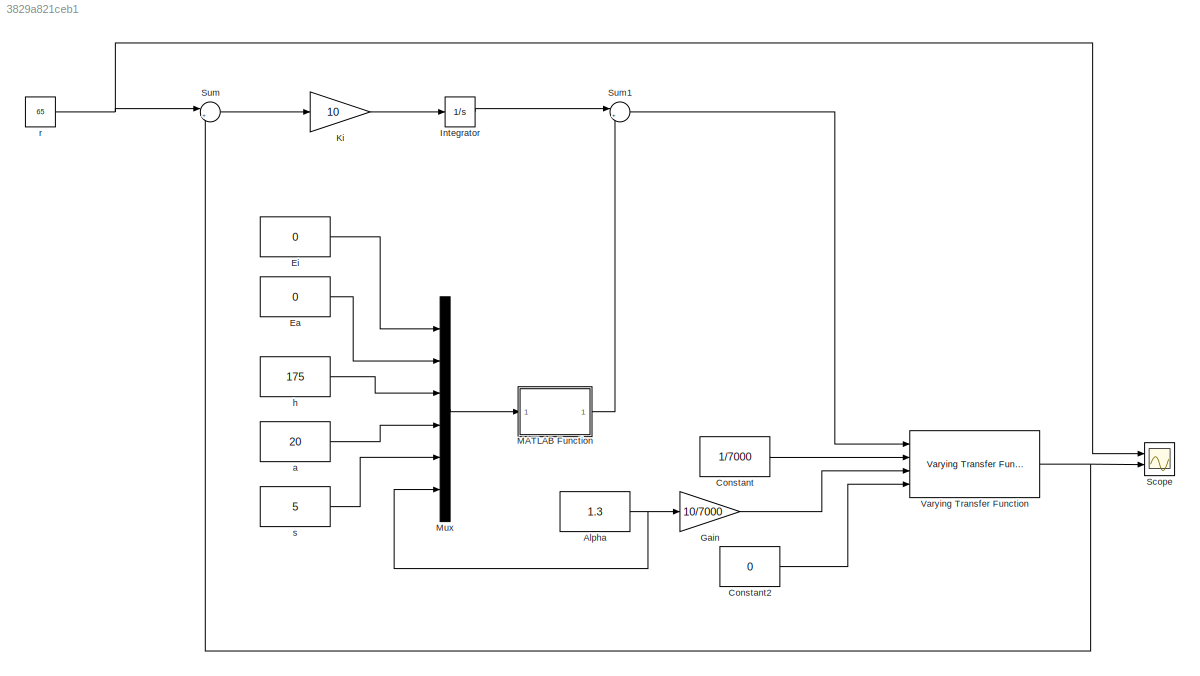
MODEL slx_3829a821ceb1
KIND model
CONFIG AbsTol = auto
CONFIG EnableMultiTasking = off
CONFIG FixedStep = auto
CONFIG MaxStep = auto
CONFIG MinStep = auto
CONFIG RelTol = 1e-3
CONFIG SampleTimeConstraint = Unconstrained
CONFIG SolverName = VariableStepAuto
CONFIG StartTime = 0.0
CONFIG StopTime = 5000
BLOCK [Constant] Alpha
  Value = 1.3
BLOCK [Constant] Constant
  Value = 1/7000
BLOCK [Constant] Constant2
  Value = 0
BLOCK [Constant] Ea
  Value = 0
BLOCK [Constant] Ei
  Value = 0
BLOCK [Gain] Gain
  Gain = 10/7000
BLOCK [Integrator] Integrator
  Ports = [1, 1]
BLOCK [Gain] Ki
  Gain = 10
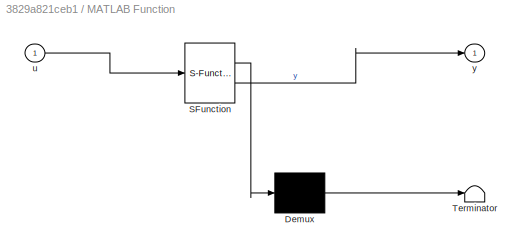
BLOCK [SubSystem] MATLAB Function
  ErrorFcn = Stateflow.Translate.translate
  PermitHierarchicalResolution = ExplicitOnly
  Ports = [1, 1]
  RequestExecContextInheritance = off
  SFBlockType = MATLAB Function
  TreatAsAtomicUnit = on
BLOCK [Demux] MATLAB Function/ Demux 
  Outputs = 1
  Ports = [1, 1]
BLOCK [S-Function] MATLAB Function/ SFunction 
  EnableBusSupport = on
  FunctionName = sf_sfun
  PortCounts = [1 2]
  Ports = [1, 2]
  SFcnIsStateOwnerBlock = off
  SFunctionDeploymentMode = off
  Tag = Stateflow S-Function 2
BLOCK [Terminator] MATLAB Function/ Terminator 
BLOCK [Inport] MATLAB Function/u
BLOCK [Outport] MATLAB Function/y
BLOCK [Mux] Mux
  DisplayOption = bar
  Inputs = 6
  Ports = [6, 1]
BLOCK [Scope] Scope
  Floating = off
  NumInputPorts = 2
  Ports = [2]
  ScopeSpecificationString = Simulink.scopes.TimeScopeBlockCfg('CurrentConfiguration', extmgr.ConfigurationSet(extmgr.Configuration('Core','General UI',true),extmgr.Configuration('Core','Source UI',true),extmgr.Configuration('Sources','WiredSimulink',true),extmgr.Configuration('Visuals','Time Domain',true,'SerializedDisplays',{struct('MinYLimReal','58.57576','MaxYLimReal','71.66707','YLabelReal','','MinYLimMag','58.57576','Ma...<+1355ch>
BLOCK [Sum] Sum
  Inputs = |+-
  Ports = [2, 1]
BLOCK [Sum] Sum1
  Inputs = |++
  Ports = [2, 1]
BLOCK [Reference] Varying Transfer Function  REF=cstblocks/Linear Parameter Varying/Varying Transfer Function
  Ports = [4, 1]
  SourceBlock = cstblocks/Linear Parameter Varying/Varying Transfer Function
  SourceProductBaseCode = CT
  SourceType = Varying Transfer Function
BLOCK [Constant] a
  Value = 20
BLOCK [Constant] h
  Value = 175
BLOCK [Constant] r
  Value = 65
BLOCK [Constant] s
  Value = 5
NET Alpha:1 -> Gain:1, Mux:6
LINE Constant2:1 -> Varying Transfer Function:4
LINE Constant:1 -> Varying Transfer Function:2
LINE Ea:1 -> Mux:2
LINE Ei:1 -> Mux:1
LINE Gain:1 -> Varying Transfer Function:3
LINE Integrator:1 -> Sum1:1
LINE Ki:1 -> Integrator:1
LINE MATLAB Function:1 -> Sum1:2
LINE Mux:1 -> MATLAB Function:1
LINE Sum1:1 -> Varying Transfer Function:1
LINE Sum:1 -> Ki:1
NET Varying Transfer Function:1 -> Scope:2, Sum:2
LINE a:1 -> Mux:4
LINE h:1 -> Mux:3
NET r:1 -> Scope:1, Sum:1
LINE s:1 -> Mux:5
note: NET lines group one-source signal fan-out (src -> all destinations, sorted); 1:1 wires keep LINE
CHART MATLAB Function states=1 transitions=1
  STATE_LABEL 'eML_blk_kernel()'
  STATE_LABEL 'SCRIPT:\nfunction y = fcn(u)\n\ny = u(1)-u(2)-u(6)*(6.25*u(3)-5*u(4)+u(5));\n'
CHART  states=0 transitions=0
